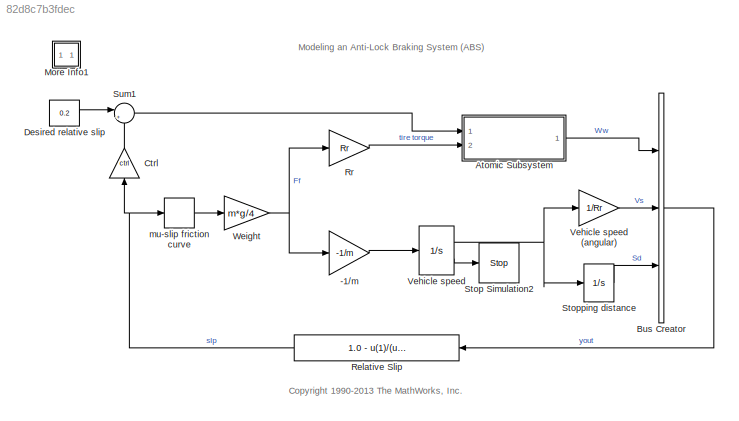
MODEL slx_82d8c7b3fdec
KIND model
CONFIG AbsTol = 1e-6
CONFIG FixedStep = auto
CONFIG MaxStep = .01
CONFIG MinStep = auto
CONFIG PreLoadFcn = % Load initialization data\n\nsldemo_absdata_mod_SI;
CONFIG RelTol = 1e-3
CONFIG SampleTimeConstraint = Unconstrained
CONFIG Solver = ode45
CONFIG SolverMode = SingleTasking
CONFIG SolverName = ode45
CONFIG StartTime = 0.0
CONFIG StopFcn = if exist ('sldemo_absbrake_output')\n  sldemo_absbrakeplots;\nend
CONFIG StopTime = 25
BLOCK [Gain] -1//m
  Gain = -1/m
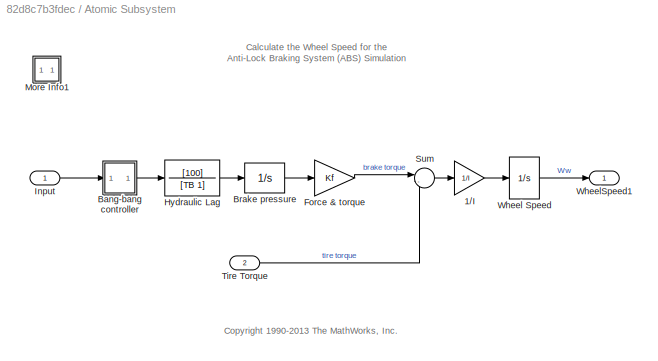
BLOCK [SubSystem] Atomic Subsystem
  Ports = [2, 1]
  RequestExecContextInheritance = off
  TreatAsAtomicUnit = on
BLOCK [Gain] Atomic Subsystem/1//I
  Gain = 1/I
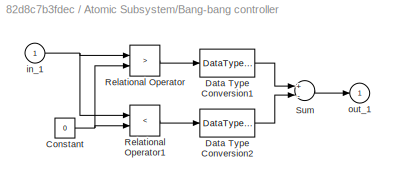
BLOCK [SubSystem] Atomic Subsystem/Bang-bang controller
  Ports = [1, 1]
  RequestExecContextInheritance = off
  ShowPortLabels = none
BLOCK [Constant] Atomic Subsystem/Bang-bang controller/Constant
  Value = 0
BLOCK [DataTypeConversion] Atomic Subsystem/Bang-bang controller/Data Type Conversion1
  OutDataTypeStr = double
BLOCK [DataTypeConversion] Atomic Subsystem/Bang-bang controller/Data Type Conversion2
  OutDataTypeStr = double
BLOCK [RelationalOperator] Atomic Subsystem/Bang-bang controller/Relational Operator
  Operator = >
  OutDataTypeStr = boolean
  Ports = [2, 1]
BLOCK [RelationalOperator] Atomic Subsystem/Bang-bang controller/Relational Operator1
  Operator = <
  OutDataTypeStr = boolean
  Ports = [2, 1]
BLOCK [Sum] Atomic Subsystem/Bang-bang controller/Sum
  Inputs = +-
  Ports = [2, 1]
BLOCK [Inport] Atomic Subsystem/Bang-bang controller/in_1
  IconDisplay = Port number
BLOCK [Outport] Atomic Subsystem/Bang-bang controller/out_1
  IconDisplay = Port number
  InitialOutput = 0
BLOCK [Integrator] Atomic Subsystem/Brake pressure
  LimitOutput = on
  LowerSaturationLimit = 0
  Ports = [1, 1]
  UpperSaturationLimit = PBmax
BLOCK [Gain] Atomic Subsystem/Force & torque
  Gain = Kf
BLOCK [TransferFcn] Atomic Subsystem/Hydraulic Lag 
  Denominator = [TB 1]
  Numerator = [100]
BLOCK [Inport] Atomic Subsystem/Input
  IconDisplay = Port number
  SampleTime = 0
BLOCK [SubSystem] Atomic Subsystem/More Info1
  OpenFcn = showdemo('sldemo_absbrake')
  Ports = []
  RequestExecContextInheritance = off
BLOCK [Sum] Atomic Subsystem/Sum
  IconShape = round
  Inputs = |-+
  Ports = [2, 1]
BLOCK [Inport] Atomic Subsystem/Tire Torque
  IconDisplay = Port number
  Port = 2
BLOCK [Integrator] Atomic Subsystem/Wheel Speed
  InitialCondition = v0/Rr
  LimitOutput = on
  LowerSaturationLimit = 0
  Ports = [1, 1]
  UpperSaturationLimit = 1000
BLOCK [Outport] Atomic Subsystem/WheelSpeed1
  IconDisplay = Port number
BLOCK [BusCreator] Bus Creator
  DisplayOption = bar
  Inputs = 3
  Ports = [3, 1]
BLOCK [Gain] Ctrl
  Gain = ctrl
BLOCK [Constant] Desired relative slip
  Value = 0.2
BLOCK [SubSystem] More Info1
  OpenFcn = showdemo(bdroot(gcs))
  Ports = []
  RequestExecContextInheritance = off
BLOCK [Fcn] Relative Slip
  Expr = 1.0 - u(1)/(u(2) + (u(2)==0)*eps)
BLOCK [Gain] Rr
  Gain = Rr
BLOCK [Stop] Stop Simulation2
BLOCK [Integrator] Stopping distance
  LowerSaturationLimit = 0
  Ports = [1, 1]
  UpperSaturationLimit = 1000
BLOCK [Sum] Sum1
  IconShape = round
  Inputs = |+-
  Ports = [2, 1]
BLOCK [Integrator] Vehicle speed
  InitialCondition = v0
  LimitOutput = on
  LowerSaturationLimit = 0
  Ports = [1, 2]
  ShowSaturationPort = on
  UpperSaturationLimit = 1000
BLOCK [Gain] Vehicle speed (angular)
  Gain = 1/Rr
BLOCK [Gain] Weight
  Gain = m*g/4
BLOCK [Lookup_n-D] mu-slip friction curve
  BreakpointsForDimension1 = slip
  NumberOfTableDimensions = 1
  Ports = [1, 1]
  SaturateOnIntegerOverflow = on
  Table = mu
ANNOTATION (root): <copyright redacted>
ANNOTATION (root): Modeling an Anti-Lock Braking System (ABS)
ANNOTATION Atomic Subsystem: Calculate the Wheel Speed for the Anti-Lock Braking System (ABS) Simulation
ANNOTATION Atomic Subsystem: <copyright redacted>
LINE -1//m:1 -> Vehicle speed:1
LINE Atomic Subsystem/1//I:1 -> Atomic Subsystem/Wheel Speed:1
NET Atomic Subsystem/Bang-bang controller/Constant:1 -> Atomic Subsystem/Bang-bang controller/Relational Operator1:2, Atomic Subsystem/Bang-bang controller/Relational Operator:2
LINE Atomic Subsystem/Bang-bang controller/Data Type Conversion1:1 -> Atomic Subsystem/Bang-bang controller/Sum:1
LINE Atomic Subsystem/Bang-bang controller/Data Type Conversion2:1 -> Atomic Subsystem/Bang-bang controller/Sum:2
LINE Atomic Subsystem/Bang-bang controller/Relational Operator1:1 -> Atomic Subsystem/Bang-bang controller/Data Type Conversion2:1
LINE Atomic Subsystem/Bang-bang controller/Relational Operator:1 -> Atomic Subsystem/Bang-bang controller/Data Type Conversion1:1
LINE Atomic Subsystem/Bang-bang controller/Sum:1 -> Atomic Subsystem/Bang-bang controller/out_1:1
NET Atomic Subsystem/Bang-bang controller/in_1:1 -> Atomic Subsystem/Bang-bang controller/Relational Operator1:1, Atomic Subsystem/Bang-bang controller/Relational Operator:1
LINE Atomic Subsystem/Bang-bang controller:1 -> Atomic Subsystem/Hydraulic Lag :1
LINE Atomic Subsystem/Brake pressure:1 -> Atomic Subsystem/Force & torque:1
LINE Atomic Subsystem/Force & torque:1 -> Atomic Subsystem/Sum:1
LINE Atomic Subsystem/Hydraulic Lag :1 -> Atomic Subsystem/Brake pressure:1
LINE Atomic Subsystem/Input:1 -> Atomic Subsystem/Bang-bang controller:1
LINE Atomic Subsystem/Sum:1 -> Atomic Subsystem/1//I:1
LINE Atomic Subsystem/Tire Torque:1 -> Atomic Subsystem/Sum:2
LINE Atomic Subsystem/Wheel Speed:1 -> Atomic Subsystem/WheelSpeed1:1
LINE Atomic Subsystem:1 -> Bus Creator:1
LINE Bus Creator:1 -> Relative Slip:1
LINE Ctrl:1 -> Sum1:2
LINE Desired relative slip:1 -> Sum1:1
NET Relative Slip:1 -> Ctrl:1, mu-slip friction curve:1
LINE Rr:1 -> Atomic Subsystem:2
LINE Stopping distance:1 -> Bus Creator:3
LINE Sum1:1 -> Atomic Subsystem:1
LINE Vehicle speed (angular):1 -> Bus Creator:2
NET Vehicle speed:1 -> Stopping distance:1, Vehicle speed (angular):1
LINE Vehicle speed:2 -> Stop Simulation2:1
NET Weight:1 -> -1//m:1, Rr:1
LINE mu-slip friction curve:1 -> Weight:1
note: NET lines group one-source signal fan-out (src -> all destinations, sorted); 1:1 wires keep LINE
